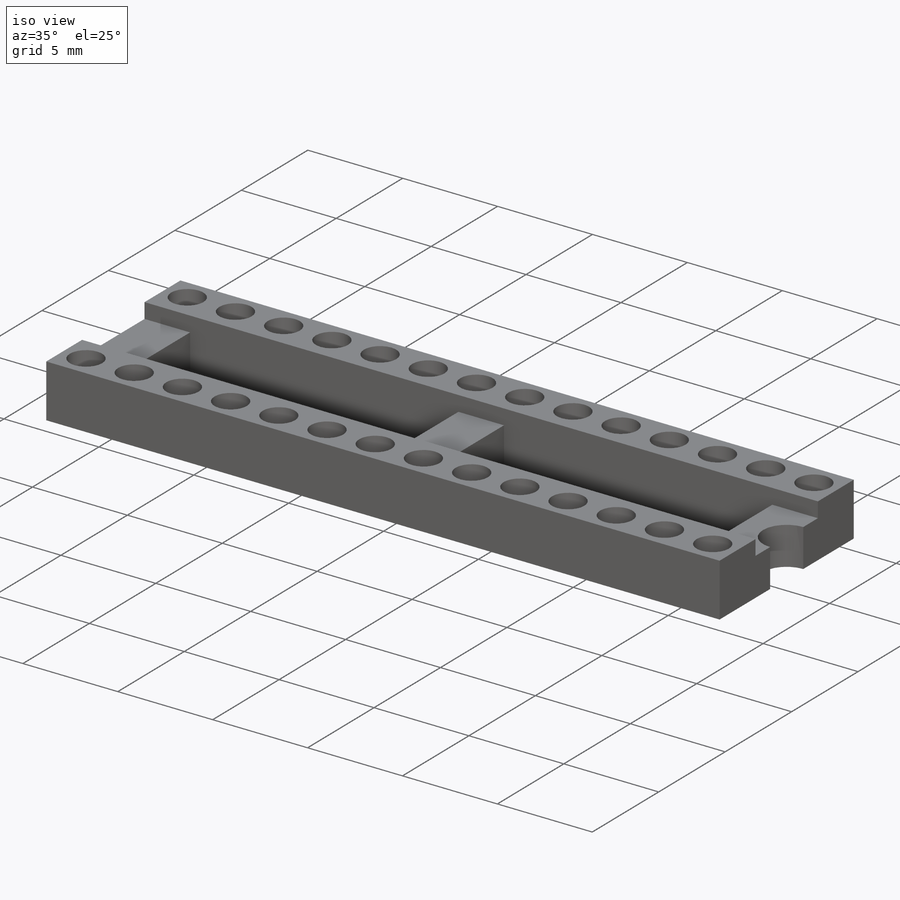
[diagram: iso view]
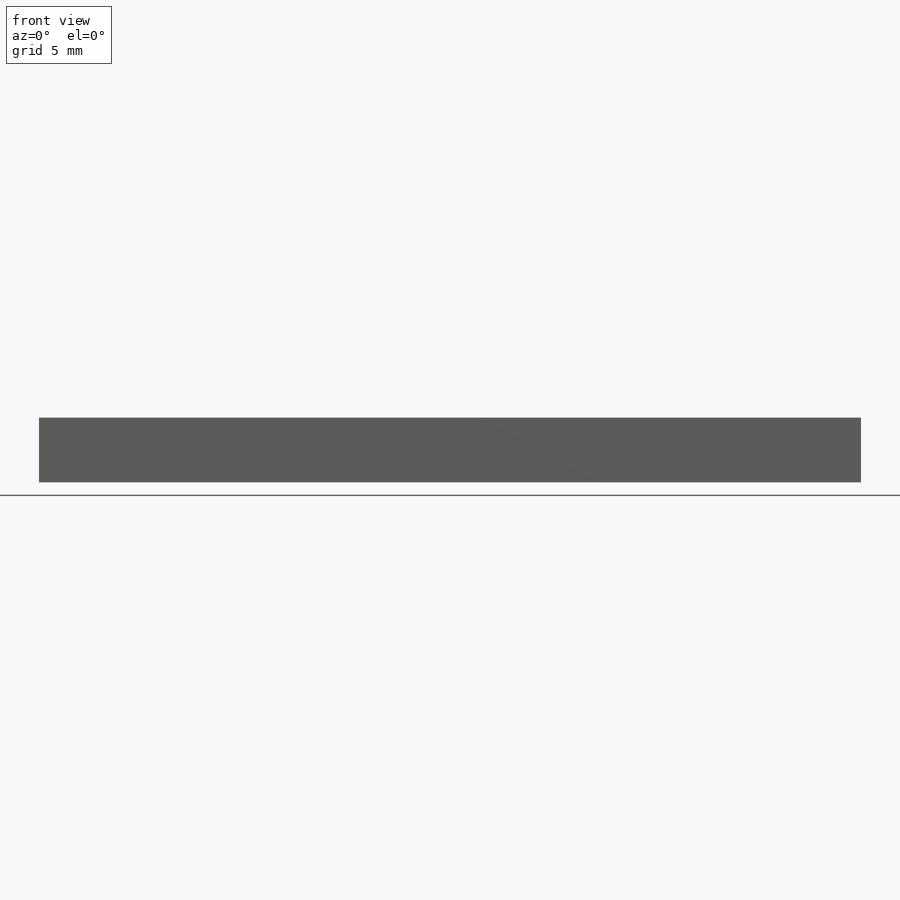
[diagram: front view]
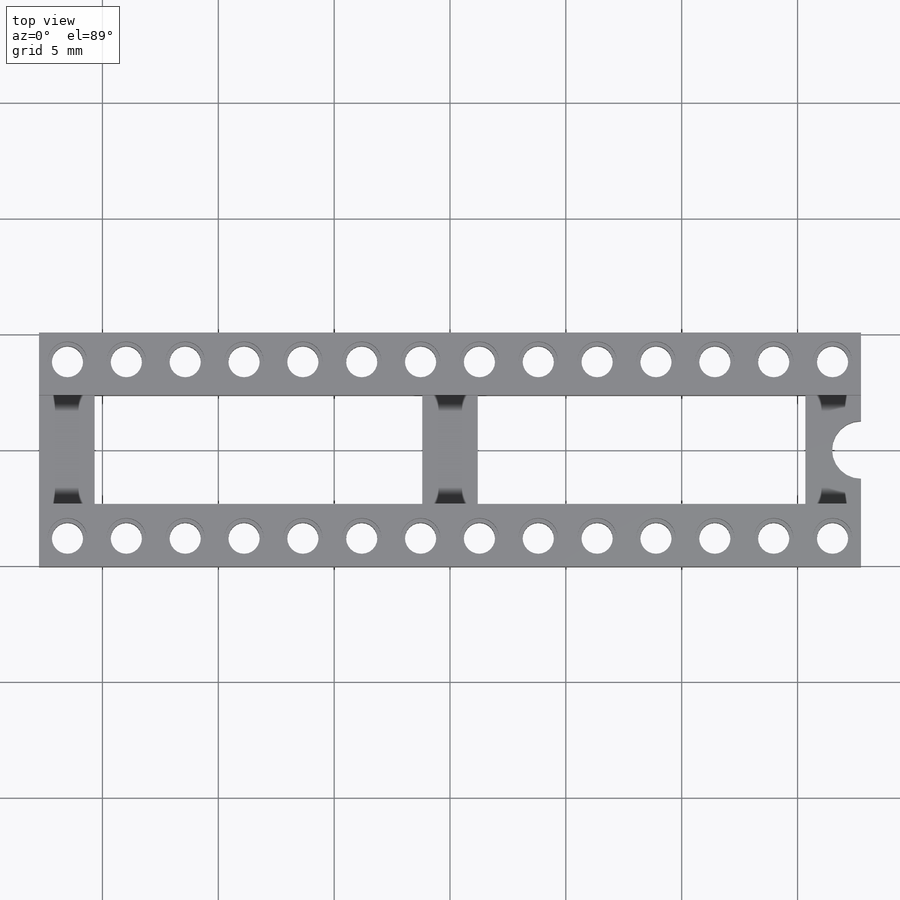
[diagram: top view]
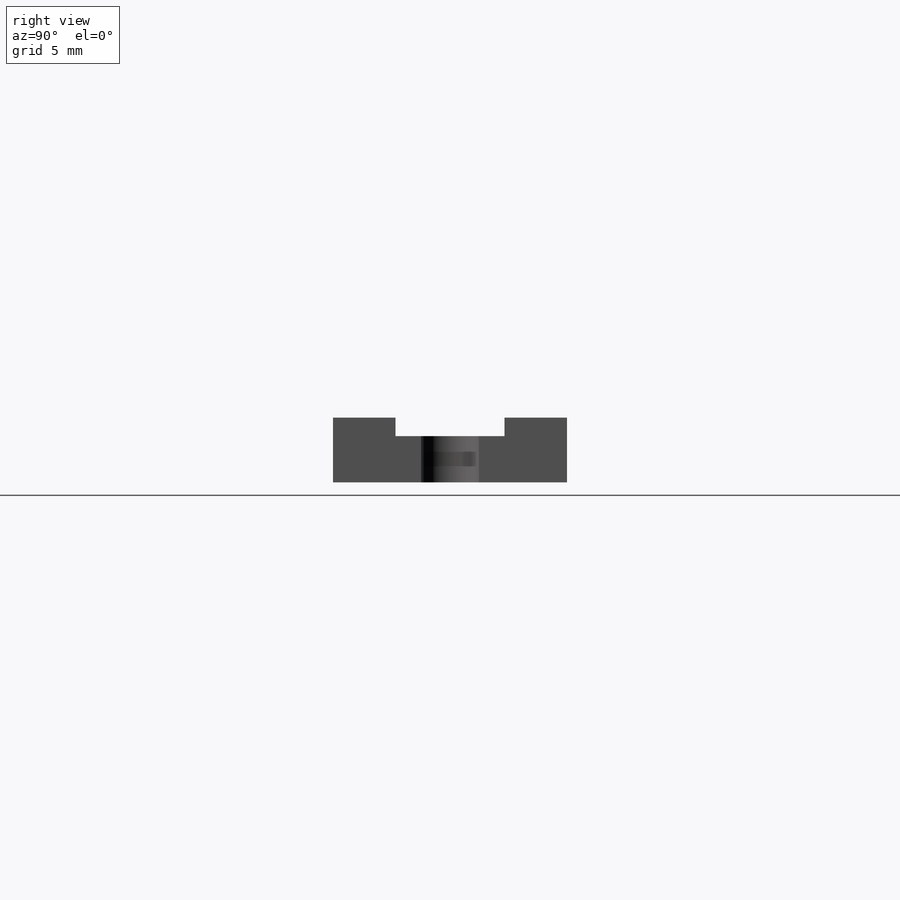
[diagram: right view]
SOLIDWORKS PART (.sldprt)
format: sldprt  version: not decoded by parser v0  size: 299,520 bytes
history: native  units: mm
features: sketch x5, cut_extrude x2, material x1, extrude x1, hole x1, pattern_linear x1 (+13 scaffold rows collapsed)
feature tree (24):
  scaffold x13  (default folders/planes/origin — collapsed)
  material  "Material <not specified>"
  sketch  "Sketch1"  dims[D1=10.1mm D2=4.7mm D3=2.0mm D4=2.8mm]
  extrude  "Boss-Extrude1"  Depth=35.48mm
  sketch  "Sketch2"  dims[c1.D1=2.4mm c1.D2=2.9mm c1.D3=2.9mm c1.D4=1.45mm c2.D2=30.68mm c2.D1=2.4mm c2.D3=2.4mm c2.D4=2.4mm c2.D5=1.2mm]
  cut_extrude  "Cut-Extrude1"  Depth=35.5mm
  sketch  "Sketch3"  dims[D1=2.5mm]
  cut_extrude  "Cut-Extrude2"  Depth=35.5mm
  hole  "hole"  Diameter=1.35mm Depth=2.8mm
  sketch  "Sketch5"  dims[D1=16.51mm D2=3.81mm]
  sketch  "Sketch4"  dims[hole-wizard template sketch: 41 standard entries collapsed; hole parameters kept: c12.Thru Hole Dia.=1.35mm c12.Thru Hole Depth=2.8mm c12.C'Bore Dia.=1.7mm c12.C'Bore Depth=1.0mm]
  pattern_linear  "LPattern1"  Count1=14 Count2=2 Spacing1=2.54mm Spacing2=7.62mm
decode coverage: 10 of 10 modeling features carry decoded parameters
note: ~ marks probable driven/reference dimensions
note: suppression state not decoded; provenance and decode notes live in map.json
